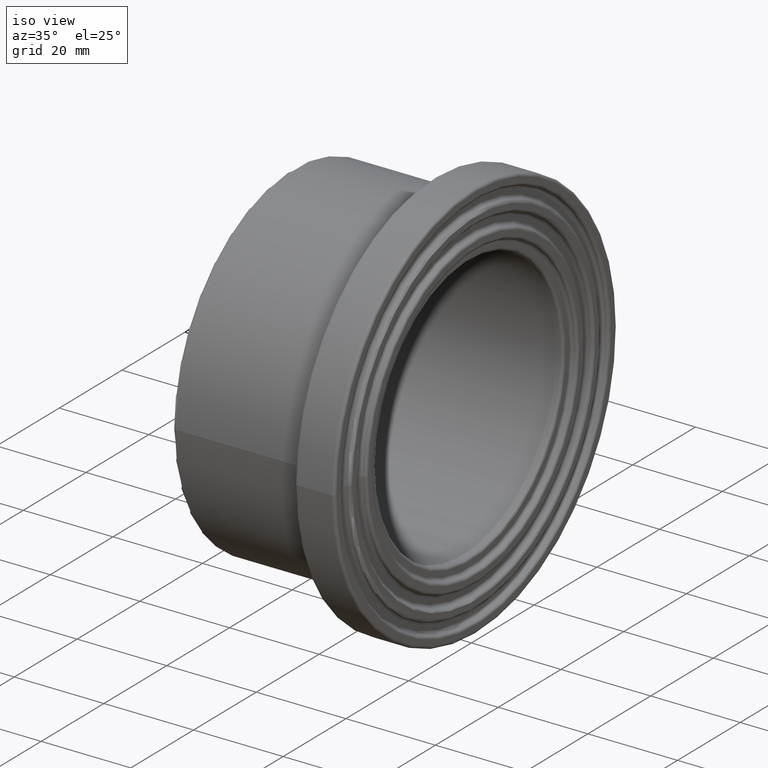
[diagram: clean part render]
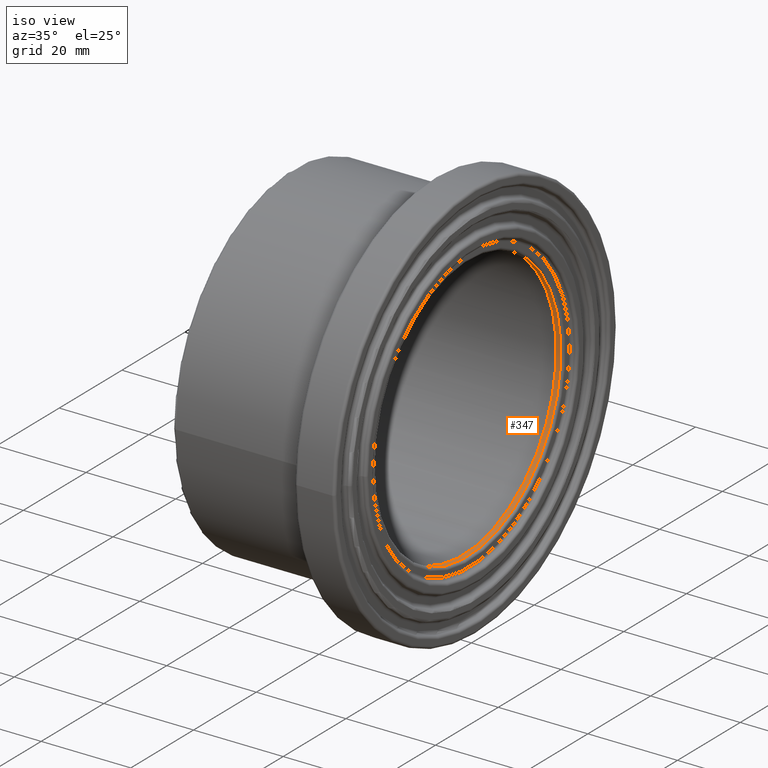
[diagram: same view with one face highlighted and labeled with its STEP entity id]
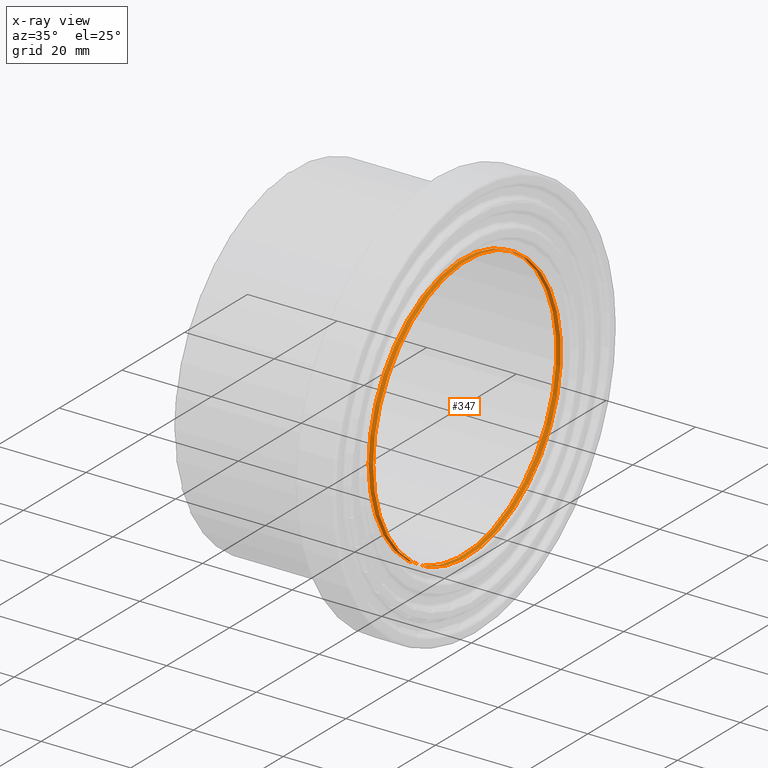
[diagram: x-ray of the same camera — body ghosted, the highlighted face saturated]
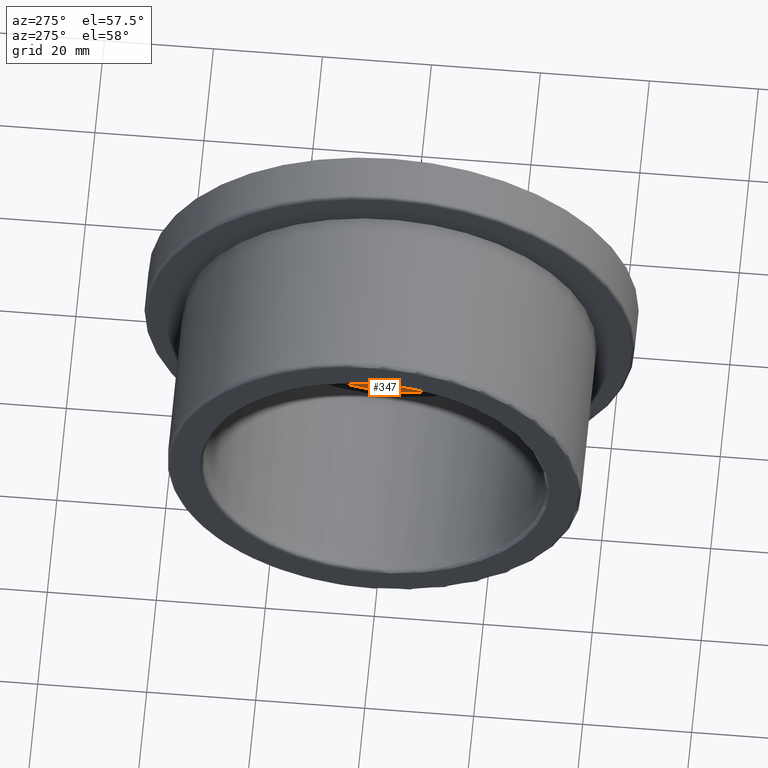
[diagram: same view with one face highlighted and labeled with its STEP entity id]
A machine part, iso view. The second image highlights one B-rep face of the part: STEP entity #347.
The next image is the same camera in x-ray: the body ghosted, the highlighted face saturated — about 0% of this face is hidden behind the body in this view.
A second angle (auxiliary view) of the same face is appended — the face is thin or edge-on in the first view.
In plain terms, the highlighted cylindrical surface (bore or boss wall) has radius 29.925 mm, axis along (-1, 0, 0).
Its self-contained STEP definition (entity closure, byte-faithful):
#15=CYLINDRICAL_SURFACE('',#385,29.925);
#35=FACE_BOUND('',#104,.T.);
#68=FACE_OUTER_BOUND('',#103,.T.);
#103=EDGE_LOOP('',(#268));
#104=EDGE_LOOP('',(#269));
#165=CIRCLE('',#381,29.925);
#168=CIRCLE('',#386,29.925);
#198=VERTEX_POINT('',#582);
#201=VERTEX_POINT('',#590);
#231=EDGE_CURVE('',#198,#198,#165,.T.);
#234=EDGE_CURVE('',#201,#201,#168,.T.);
#268=ORIENTED_EDGE('',*,*,#234,.T.);
#269=ORIENTED_EDGE('',*,*,#231,.F.);
#347=ADVANCED_FACE('',(#68,#35),#15,.F.);
#381=AXIS2_PLACEMENT_3D('',#583,#450,#451);
#385=AXIS2_PLACEMENT_3D('',#589,#458,#459);
#386=AXIS2_PLACEMENT_3D('',#591,#460,#461);
#450=DIRECTION('center_axis',(-1.,0.,0.));
#451=DIRECTION('ref_axis',(0.,1.,6.12323399573677E-17));
#458=DIRECTION('center_axis',(-1.,0.,0.));
#459=DIRECTION('ref_axis',(0.,-1.,0.));
#460=DIRECTION('center_axis',(-1.,0.,0.));
#461=DIRECTION('ref_axis',(0.,0.,1.));
#582=CARTESIAN_POINT('',(39.02,-29.925,1.83237777322423E-15));
#583=CARTESIAN_POINT('Origin',(39.02,0.,0.));
#589=CARTESIAN_POINT('Origin',(38.825,0.,0.));
#590=CARTESIAN_POINT('',(38.,-29.925,0.));
#591=CARTESIAN_POINT('Origin',(38.,0.,0.));